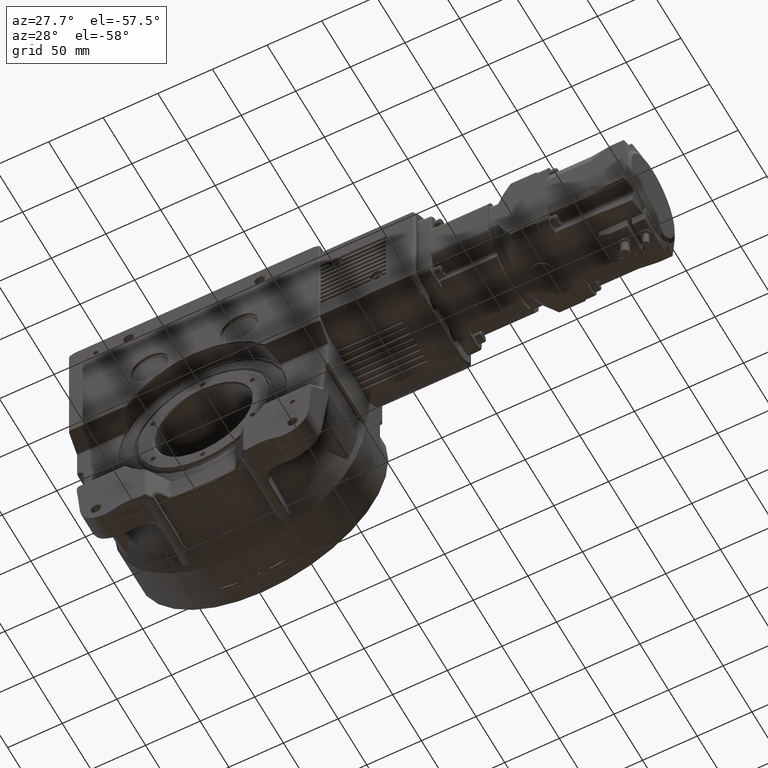
[diagram: clean part render]
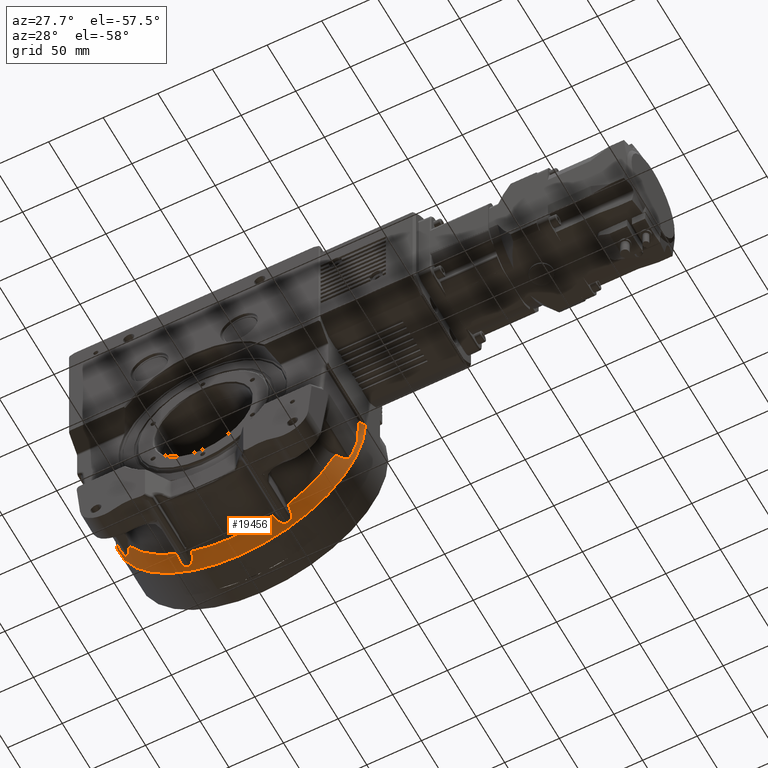
[diagram: same view with one face highlighted and labeled with its STEP entity id]
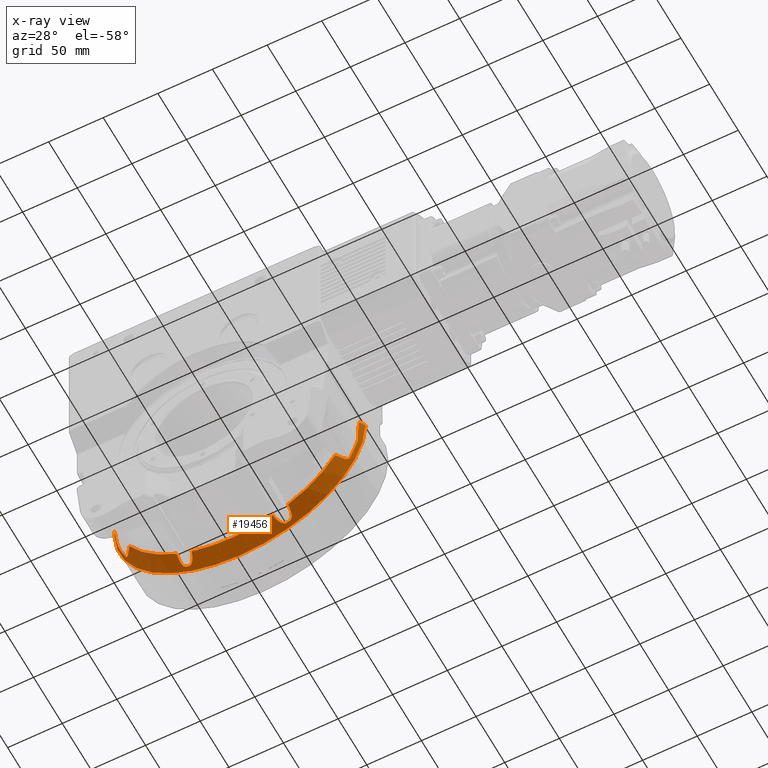
[diagram: x-ray of the same camera — body ghosted, the highlighted face saturated]
A machine part, auxiliary view. The second image highlights one B-rep face of the part: STEP entity #19456.
The next image is the same camera in x-ray: the body ghosted, the highlighted face saturated — about 0% of this face is hidden behind the body in this view.
In plain terms, the highlighted conical surface has half-angle 30 deg.
Its self-contained STEP definition (entity closure, byte-faithful):
#109 = CARTESIAN_POINT ( 'NONE',  ( 48.66629837933911773, 25.23386878858775617, -101.7902821029828999 ) ) ;
#207 = CARTESIAN_POINT ( 'NONE',  ( -38.76322180625985681, 19.83040760406539249, -102.6294529121648935 ) ) ;
#293 = CARTESIAN_POINT ( 'NONE',  ( 43.94173475166527254, 25.22323886724928599, -103.9104372815459811 ) ) ;
#528 = CARTESIAN_POINT ( 'NONE',  ( 50.69488868438047291, 22.07611580603390067, -98.75010083335860145 ) ) ;
#581 = CARTESIAN_POINT ( 'NONE',  ( -48.75841842814229921, 25.18201069366929090, -101.7128048831174567 ) ) ;
#623 = CARTESIAN_POINT ( 'NONE',  ( -39.14171349158119995, 20.55587278657718642, -102.9340031714773573 ) ) ;
#713 = CARTESIAN_POINT ( 'NONE',  ( 40.62124474390734008, 22.74151346957037134, -103.7154895297607879 ) ) ;
#955 = CARTESIAN_POINT ( 'NONE',  ( 50.15276971367310210, 23.67187135586816638, -100.0581765036745026 ) ) ;
#1055 = CARTESIAN_POINT ( 'NONE',  ( -38.13530539907443995, 18.43507766045378204, -102.0048156541862454 ) ) ;
#1252 = CARTESIAN_POINT ( 'NONE',  ( 0.000000000000000000, 29.00000000000000000, 0.000000000000000000 ) ) ;
#1288 = ORIENTED_EDGE ( 'NONE', *, *, #69919, .T. ) ;
#1453 = CARTESIAN_POINT ( 'NONE',  ( -48.13002355337695803, 25.40750675056572305, -102.1555389521830080 ) ) ;
#1596 = ORIENTED_EDGE ( 'NONE', *, *, #22812, .T. ) ;
#1599 = AXIS2_PLACEMENT_3D ( 'NONE', #39622, #26592, #53111 ) ;
#1735 = CARTESIAN_POINT ( 'NONE',  ( 50.89819262675280243, 20.46411456383005145, -97.59700854649109658 ) ) ;
#1779 = B_SPLINE_CURVE_WITH_KNOTS ( 'NONE', 3,
 ( #53347, #65554, #12504, #79480, #20730, #7258, #33359, #293, #47268, #72492, #40309, #66841, #40720, #6385, #59895, #46390, #26821, #67258, #12916, #20290, #33769, #39015, #5957, #86005, #39869, #7695, #26407, #34204, #52930, #19864, #79909, #72926, #66417, #60319, #713, #28102, #75919, #68129, #9392, #15497, #8544, #21144, #75088, #35064, #54627, #74655, #35916, #42416, #47677, #2431, #22430, #15074, #41600, #42005, #62468, #34650, #61609, #9826, #62881, #3267, #2859 ),
 .UNSPECIFIED., .F., .F.,
 ( 4, 1, 1, 2, 2, 1, 1, 1, 1, 2, 2, 2, 1, 1, 1, 1, 2, 2, 2, 1, 1, 1, 1, 2, 2, 1, 1, 1, 1, 2, 2, 1, 1, 1, 1, 2, 2, 1, 1, 1, 2, 2, 4 ),
 ( 0.000000000000000000, 0.03125000000003220341, 0.04687500000004835021, 0.05468750000005684342, 0.06250000000006533662, 0.09375000000009986456, 0.1093750000001160599, 0.1171875000001241507, 0.1210937500001280503, 0.1230468750001292022, 0.1250000000001303402, 0.1875000000001748046, 0.2187500000001972866, 0.2343750000002087774, 0.2421875000002152722, 0.2460937500002176592, 0.2480468750002189637, 0.2500000000002202682, 0.3125000000002286504, 0.3437500000002328138, 0.3593750000002351452, 0.3671875000002370326, 0.3710937500002379763, 0.3730468750002374212, 0.3750000000002368661, 0.4375000000002063905, 0.4687500000001907363, 0.4843750000001832978, 0.4921875000001791900, 0.4960937500001779132, 0.5000000000001766365, 0.5625000000001602052, 0.5937500000001523226, 0.6093750000001481038, 0.6171875000001468825, 0.6210937500001454392, 0.6250000000001439959, 0.6875000000001204592, 0.7187500000001084688, 0.7343750000001024736, 0.7421875000001006972, 0.7500000000000988098, 1.000000000000000000 ),
 .UNSPECIFIED. ) ;
#1872 = CARTESIAN_POINT ( 'NONE',  ( -49.59158070749003855, 24.51466744191842295, -100.8799853177025625 ) ) ;
#1912 = CARTESIAN_POINT ( 'NONE',  ( -44.03910381569563981, 25.24811826995350827, -103.8847214090307602 ) ) ;
#1998 = ORIENTED_EDGE ( 'NONE', *, *, #75021, .F. ) ;
#2193 = CARTESIAN_POINT ( 'NONE',  ( 45.81597352803279932, 25.36602540378444814, -103.1878915612483922 ) ) ;
#2209 = VERTEX_POINT ( 'NONE', #55078 ) ;
#2354 = CARTESIAN_POINT ( 'NONE',  ( -99.79261124514704306, 23.34817751874940228, -50.26507202463927371 ) ) ;
#2431 = CARTESIAN_POINT ( 'NONE',  ( 38.83304882065202435, 19.96873621670604848, -102.6884397670671660 ) ) ;
#2777 = CARTESIAN_POINT ( 'NONE',  ( -44.89767231685524962, 25.36602540378444814, -103.5907496628230007 ) ) ;
#2791 = CARTESIAN_POINT ( 'NONE',  ( -100.7638827832306418, 24.36986744644077518, -49.63832202428451268 ) ) ;
#2828 = CARTESIAN_POINT ( 'NONE',  ( 110.9809092037100413, 23.56570828397758888, -14.01688314667545221 ) ) ;
#2859 = CARTESIAN_POINT ( 'NONE',  ( 37.18842157910700053, 15.47114317029969932, -100.5312229560019830 ) ) ;
#3267 = CARTESIAN_POINT ( 'NONE',  ( 37.43453266047418282, 16.49601782966484720, -101.0710807487430003 ) ) ;
#3309 = CARTESIAN_POINT ( 'NONE',  ( 37.18842157910700053, 15.47114317029969932, -100.5312229560019830 ) ) ;
#3384 = B_SPLINE_CURVE_WITH_KNOTS ( 'NONE', 3,
 ( #16481, #3838, #75214, #30374 ),
 .UNSPECIFIED., .F., .F.,
 ( 4, 4 ),
 ( 0.000000000000000000, 0.001505995272605629900 ),
 .UNSPECIFIED. ) ;
#3625 = CARTESIAN_POINT ( 'NONE',  ( -98.67309716674256492, 21.96361053954290199, -50.70263805858520811 ) ) ;
#3778 = CARTESIAN_POINT ( 'NONE',  ( -111.6203910018553387, 23.46598208290950893, -6.693446201811755536 ) ) ;
#3784 = CARTESIAN_POINT ( 'NONE',  ( 94.19257498827731467, 15.47114317029969932, -51.15920548300699267 ) ) ;
#3838 = CARTESIAN_POINT ( 'NONE',  ( -46.27559876770929748, 25.36602540378439841, -102.9838155064400098 ) ) ;
#4073 = CARTESIAN_POINT ( 'NONE',  ( -97.73060098623642489, 20.66100338132034864, -50.88792202985181490 ) ) ;
#4468 = VERTEX_POINT ( 'NONE', #53154 ) ;
#5107 = CARTESIAN_POINT ( 'NONE',  ( -38.94350711527153663, 20.18665162333093832, -102.7811858402334764 ) ) ;
#5763 = CARTESIAN_POINT ( 'NONE',  ( 50.89819262675280243, 20.46411456383005145, -97.59700854649109658 ) ) ;
#5905 = VERTEX_POINT ( 'NONE', #79618 ) ;
#5957 = CARTESIAN_POINT ( 'NONE',  ( 41.84407709221748206, 24.00408874316632790, -104.0143408519285373 ) ) ;
#6086 = VERTEX_POINT ( 'NONE', #69006 ) ;
#6186 = CARTESIAN_POINT ( 'NONE',  ( 50.76486959451239045, 21.71856452255676118, -98.48199611503514461 ) ) ;
#6385 = CARTESIAN_POINT ( 'NONE',  ( 43.28034195345470891, 24.96426927166790222, -104.0256418341324718 ) ) ;
#6477 = AXIS2_PLACEMENT_3D ( 'NONE', #48971, #9840, #42018 ) ;
#6631 = CARTESIAN_POINT ( 'NONE',  ( 48.99829381509683657, 25.03838846144725494, -101.5053404578269038 ) ) ;
#6689 = CARTESIAN_POINT ( 'NONE',  ( -48.15020355146942421, 25.40299912891743972, -102.1431514375182275 ) ) ;
#6918 = CARTESIAN_POINT ( 'NONE',  ( 110.3231518564636247, 24.44423128482015528, -21.66713789972333970 ) ) ;
#6961 = EDGE_CURVE ( 'NONE', #55306, #58257, #28708, .T. ) ;
#7079 = CARTESIAN_POINT ( 'NONE',  ( 50.20649485834614723, 23.56452205287009605, -99.96189547494378758 ) ) ;
#7222 = FACE_OUTER_BOUND ( 'NONE', #60717, .T. ) ;
#7258 = CARTESIAN_POINT ( 'NONE',  ( 44.14532624667906191, 25.27503565992290291, -103.8565187251822692 ) ) ;
#7502 = CARTESIAN_POINT ( 'NONE',  ( 50.88197416982818311, 20.77505785072037270, -97.80793644193875025 ) ) ;
#7561 = CARTESIAN_POINT ( 'NONE',  ( -50.38522378418985426, 23.14618453937278275, -99.60131115869799601 ) ) ;
#7600 = CARTESIAN_POINT ( 'NONE',  ( -38.71148266366422774, 19.72629388579601084, -102.5847370321163083 ) ) ;
#7695 = CARTESIAN_POINT ( 'NONE',  ( 41.60932006846830689, 23.80047829522319347, -103.9820219650964788 ) ) ;
#7997 = CARTESIAN_POINT ( 'NONE',  ( -48.52421145668785130, 25.29523063304236175, -101.8973319033757008 ) ) ;
#8040 = CARTESIAN_POINT ( 'NONE',  ( -43.40368621063422694, 25.02365894984813011, -104.0114761371228127 ) ) ;
#8068 = CARTESIAN_POINT ( 'NONE',  ( -45.81597352803279932, 25.36602540378444814, -103.1878915612483922 ) ) ;
#8314 = VERTEX_POINT ( 'NONE', #66334 ) ;
#8424 = CARTESIAN_POINT ( 'NONE',  ( -50.65783540739104041, 22.24199248932753292, -98.87673010607903734 ) ) ;
#8544 = CARTESIAN_POINT ( 'NONE',  ( 39.67279357995673905, 21.43488356989650612, -103.2742486498776913 ) ) ;
#8937 = ORIENTED_EDGE ( 'NONE', *, *, #32341, .T. ) ;
#9316 = CARTESIAN_POINT ( 'NONE',  ( -100.4377337670749739, 24.05361488837114692, -49.88630818607472150 ) ) ;
#9392 = CARTESIAN_POINT ( 'NONE',  ( 39.77144120698195451, 21.58680489732959629, -103.3302960387607214 ) ) ;
#9756 = CARTESIAN_POINT ( 'NONE',  ( -101.0995937524998567, 24.67002013426290929, -49.34722357348123722 ) ) ;
#9826 = CARTESIAN_POINT ( 'NONE',  ( 38.16101510540905650, 18.49839494403651941, -102.0342303827893176 ) ) ;
#9840 = DIRECTION ( 'NONE',  ( 0.000000000000000000, 1.000000000000000000, 0.000000000000000000 ) ) ;
#9894 = CARTESIAN_POINT ( 'NONE',  ( -110.3247254981578749, 24.52301682882446698, -21.65872618851876652 ) ) ;
#10173 = CARTESIAN_POINT ( 'NONE',  ( -98.37424451752386290, 21.56393894880995532, -50.77901573038113980 ) ) ;
#10662 = VERTEX_POINT ( 'NONE', #47686 ) ;
#11043 = CARTESIAN_POINT ( 'NONE',  ( -101.2640796919424275, 24.80445054771093538, -49.18662864116930677 ) ) ;
#11204 = CARTESIAN_POINT ( 'NONE',  ( 0.000000000000000000, 25.36602540377874959, 0.000000000000000000 ) ) ;
#11314 = AXIS2_PLACEMENT_3D ( 'NONE', #30198, #52251, #83726 ) ;
#11510 = EDGE_CURVE ( 'NONE', #5905, #11687, #53479, .T. ) ;
#11592 = CARTESIAN_POINT ( 'NONE',  ( -110.6431322624109868, 23.94802380310665768, -17.93374981681786196 ) ) ;
#11639 = B_SPLINE_CURVE_WITH_KNOTS ( 'NONE', 3,
 ( #5763, #7502, #73616, #60558, #6186, #66219, #528, #45329, #32711, #52300, #46195, #52747, #34012, #85805, #60134, #59268, #40544, #79293, #13149, #7079, #955, #40113, #73167, #27488, #26214, #80145, #80590, #71871, #39243, #72728, #79714, #19673, #12301, #46623, #59715, #53581, #72309, #39666, #65777, #6631, #32280, #109, #58830, #20098, #26635, #53159, #20529, #38834, #65363, #66664 ),
 .UNSPECIFIED., .F., .F.,
 ( 4, 2, 1, 1, 1, 2, 2, 1, 1, 1, 2, 2, 1, 1, 1, 2, 2, 1, 1, 1, 1, 2, 2, 1, 1, 1, 1, 2, 2, 1, 1, 1, 2, 2, 4 ),
 ( 0.000000000000000000, 0.1250000000000417166, 0.1875000000000638656, 0.2187500000000768829, 0.2343750000000829059, 0.2421875000000854317, 0.2500000000000879297, 0.3125000000000891509, 0.3437500000000883182, 0.3593750000000878742, 0.3671875000000890399, 0.3750000000000901501, 0.4375000000000951461, 0.4687500000000953126, 0.4843750000000969225, 0.4921875000000977551, 0.5000000000000985878, 0.5625000000001069145, 0.5937500000001115774, 0.6093750000001120215, 0.6171875000001102451, 0.6210937500001088019, 0.6250000000001073586, 0.6875000000000581757, 0.7187500000000333067, 0.7343750000000204281, 0.7421875000000138778, 0.7460937500000133227, 0.7500000000000126565, 0.8125000000000150990, 0.8437500000000160982, 0.8593750000000153211, 0.8671875000000159872, 0.8750000000000165423, 1.000000000000000000 ),
 .UNSPECIFIED. ) ;
#11646 = CARTESIAN_POINT ( 'NONE',  ( -42.05816244243780488, 24.18983273899070596, -104.0438543688387369 ) ) ;
#11687 = VERTEX_POINT ( 'NONE', #56041 ) ;
#12075 = CARTESIAN_POINT ( 'NONE',  ( -41.63845296891059178, 23.82220236960060689, -103.9837318817542098 ) ) ;
#12301 = CARTESIAN_POINT ( 'NONE',  ( 49.52799153417793576, 24.58993883312184536, -100.9597250626058837 ) ) ;
#12504 = CARTESIAN_POINT ( 'NONE',  ( 44.56132372581329548, 25.35246171525849945, -103.7275336837866462 ) ) ;
#12835 = AXIS2_PLACEMENT_3D ( 'NONE', #11204, #70778, #37704 ) ;
#12853 = CARTESIAN_POINT ( 'NONE',  ( 51.15920548300699267, 15.47114317029969932, -94.19257498827731467 ) ) ;
#12916 = CARTESIAN_POINT ( 'NONE',  ( 42.23656760491641649, 24.32432944954352294, -104.0552510877427324 ) ) ;
#13149 = CARTESIAN_POINT ( 'NONE',  ( 50.30879390291237030, 23.34387841818155351, -99.76786775553274822 ) ) ;
#13429 = CARTESIAN_POINT ( 'NONE',  ( 111.0013633468878140, 23.55003228647392888, -13.78070409374474359 ) ) ;
#13488 = CARTESIAN_POINT ( 'NONE',  ( -94.19257498827731467, 15.47114317029969932, -51.15920548300699267 ) ) ;
#13647 = CARTESIAN_POINT ( 'NONE',  ( -49.96091221072690303, 24.01500394270529881, -100.3754769476510802 ) ) ;
#13701 = CARTESIAN_POINT ( 'NONE',  ( -37.31139901264223369, 15.98325524019877975, -100.8009805201737805 ) ) ;
#13873 = CARTESIAN_POINT ( 'NONE',  ( 111.3708233701065353, 23.41288451487382005, -9.535407325083392394 ) ) ;
#13995 = B_SPLINE_CURVE_WITH_KNOTS ( 'NONE', 3,
 ( #47415, #80926, #81351, #1735 ),
 .UNSPECIFIED., .F., .F.,
 ( 4, 4 ),
 ( 5.204170427930419742E-18, 0.006048806402922349452 ),
 .UNSPECIFIED. ) ;
#14086 = CARTESIAN_POINT ( 'NONE',  ( -49.09857047305435884, 24.97282940766093162, -101.4149290742071940 ) ) ;
#14123 = CARTESIAN_POINT ( 'NONE',  ( -39.56986645090258037, 21.27279578496585088, -103.2135136415601551 ) ) ;
#14288 = CARTESIAN_POINT ( 'NONE',  ( 111.2884418910864497, 23.41691367203797114, -10.47797333817591969 ) ) ;
#14499 = CARTESIAN_POINT ( 'NONE',  ( -49.57334769259497875, 24.53540038401127177, -100.9022856925976726 ) ) ;
#14709 = CARTESIAN_POINT ( 'NONE',  ( 111.1652253213693058, 23.45496186206627698, -11.89273416627569269 ) ) ;
#14842 = EDGE_CURVE ( 'NONE', #73896, #36282, #82987, .T. ) ;
#14902 = B_SPLINE_CURVE_WITH_KNOTS ( 'NONE', 3,
 ( #74127, #13701, #41065, #79811, #77789, #64702, #27598, #60661, #57755, #1055, #80243, #67174, #46730, #7600, #207, #38598, #34115, #31195, #5107, #623, #58621, #25125, #14123, #27161, #73267, #18161, #18576, #21054, #45097, #80685, #67604, #47176, #47589, #51644, #26731, #20636, #73706, #40638, #12075, #84294, #32072, #44678, #71218, #71644, #11646, #53260, #38157, #20201, #84734, #40220, #31632, #58201, #22754, #8040, #82802, #41510, #54977, #76281, #1912, #61947, #68444, #81978, #2777 ),
 .UNSPECIFIED., .F., .F.,
 ( 4, 2, 1, 1, 1, 2, 2, 1, 1, 1, 1, 2, 2, 1, 1, 1, 1, 2, 2, 1, 1, 1, 1, 2, 2, 2, 1, 1, 1, 1, 2, 2, 2, 1, 1, 1, 2, 2, 1, 1, 1, 2, 2, 4 ),
 ( 0.000000000000000000, 0.1250000000000040246, 0.1875000000000061617, 0.2187500000000068834, 0.2343750000000075495, 0.2421875000000076328, 0.2500000000000077161, 0.3125000000000116573, 0.3437500000000139333, 0.3593750000000147660, 0.3671875000000146549, 0.3710937500000139333, 0.3750000000000132672, 0.4375000000000019984, 0.4687499999999963363, 0.4843749999999933387, 0.4921874999999921729, 0.4960937499999919509, 0.4999999999999916733, 0.5624999999999916733, 0.5937499999999923395, 0.6093749999999924505, 0.6171874999999931166, 0.6210937499999934497, 0.6249999999999937828, 0.6874999999999905631, 0.7187499999999886757, 0.7343749999999874545, 0.7421874999999863443, 0.7460937499999854561, 0.7480468749999844569, 0.7499999999999833467, 0.8124999999999740208, 0.8437499999999689138, 0.8593749999999655831, 0.8671874999999644729, 0.8710937499999648059, 0.8749999999999650280, 0.9062499999999747979, 0.9218749999999795719, 0.9296874999999816813, 0.9335937499999827915, 0.9374999999999839018, 1.000000000000000000 ),
 .UNSPECIFIED. ) ;
#14938 = CARTESIAN_POINT ( 'NONE',  ( -50.47452882789096407, 22.90008849021220172, -99.39679070639252245 ) ) ;
#15003 = CARTESIAN_POINT ( 'NONE',  ( 102.0766076132037909, 25.31409016130549716, -48.17207954277209581 ) ) ;
#15074 = CARTESIAN_POINT ( 'NONE',  ( 38.69700297120677845, 19.70062887468483837, -102.5743887369401932 ) ) ;
#15422 = CARTESIAN_POINT ( 'NONE',  ( -98.69131537781728980, 21.98762680227063626, -50.69751903367701829 ) ) ;
#15426 = CARTESIAN_POINT ( 'NONE',  ( 99.76504968481390279, 23.32034699796510324, -50.28444448884160067 ) ) ;
#15497 = CARTESIAN_POINT ( 'NONE',  ( 39.70230140334071933, 21.48069650708854539, -103.2912471042031228 ) ) ;
#15546 = VERTEX_POINT ( 'NONE', #3309 ) ;
#15835 = CARTESIAN_POINT ( 'NONE',  ( -98.54531131508024089, 21.79401550721283343, -50.73702397925830354 ) ) ;
#16258 = CARTESIAN_POINT ( 'NONE',  ( -101.2592998013289929, 24.80064768940426134, -49.19144339622312145 ) ) ;
#16481 = CARTESIAN_POINT ( 'NONE',  ( -45.81597352803279932, 25.36602540378444814, -103.1878915612483922 ) ) ;
#17021 = CARTESIAN_POINT ( 'NONE',  ( -95.30881779270600873, 17.09957228234669913, -51.07387635447860674 ) ) ;
#17433 = CARTESIAN_POINT ( 'NONE',  ( -96.42098134394520059, 18.73078630554089941, -50.98860857524759638 ) ) ;
#18114 = CARTESIAN_POINT ( 'NONE',  ( -110.0089649145554063, 25.36602540377869985, -25.39433073748484659 ) ) ;
#18161 = CARTESIAN_POINT ( 'NONE',  ( -39.62296558751293674, 21.35691575780156981, -103.2451618389348624 ) ) ;
#18172 = ORIENTED_EDGE ( 'NONE', *, *, #30064, .T. ) ;
#18576 = CARTESIAN_POINT ( 'NONE',  ( -39.79054533834118246, 21.62017605491432448, -103.3436426213508099 ) ) ;
#18778 = CONICAL_SURFACE ( 'NONE', #75733, 102.5000000000000000, 0.5235987755982987046 ) ;
#19456 = ADVANCED_FACE ( 'NONE', ( #7222 ), #18778, .T. ) ;
#19673 = CARTESIAN_POINT ( 'NONE',  ( 49.63082768596244421, 24.46911829938433058, -100.8313723796966315 ) ) ;
#19864 = CARTESIAN_POINT ( 'NONE',  ( 40.78677708061896112, 22.93897894785351710, -103.7730238957336297 ) ) ;
#20098 = CARTESIAN_POINT ( 'NONE',  ( 48.30037116280919918, 25.36447965272870064, -102.0476366782588116 ) ) ;
#20201 = CARTESIAN_POINT ( 'NONE',  ( -42.84459080818444932, 24.73419276022189450, -104.0623404831628562 ) ) ;
#20290 = CARTESIAN_POINT ( 'NONE',  ( 42.02519842038599762, 24.15625915252976696, -104.0360766900672189 ) ) ;
#20468 = ORIENTED_EDGE ( 'NONE', *, *, #35328, .T. ) ;
#20529 = CARTESIAN_POINT ( 'NONE',  ( 48.19370172698752697, 25.39272548331389245, -102.1160765352241100 ) ) ;
#20590 = CARTESIAN_POINT ( 'NONE',  ( -48.92885927871945029, 25.08301699263001794, -101.5674325111629059 ) ) ;
#20636 = CARTESIAN_POINT ( 'NONE',  ( -41.01269391777258022, 23.19917964639834551, -103.8456022901877134 ) ) ;
#20730 = CARTESIAN_POINT ( 'NONE',  ( 44.21523772100839977, 25.29085996320317520, -103.8367043456453587 ) ) ;
#21054 = CARTESIAN_POINT ( 'NONE',  ( -40.03250942458479500, 21.97727274327104752, -103.4713189722215958 ) ) ;
#21144 = CARTESIAN_POINT ( 'NONE',  ( 39.65314915105988547, 21.40426652003447927, -103.2628578851837347 ) ) ;
#21270 = CARTESIAN_POINT ( 'NONE',  ( 0.000000000000000000, 25.36602540377874959, 0.000000000000000000 ) ) ;
#21445 = CARTESIAN_POINT ( 'NONE',  ( -48.09153753445924906, 25.41562024934201602, -102.1788398331219696 ) ) ;
#21882 = CARTESIAN_POINT ( 'NONE',  ( -49.44318914793701936, 24.67509865503063793, -101.0559677278972117 ) ) ;
#22360 = CARTESIAN_POINT ( 'NONE',  ( -99.94248847979422123, 23.51751746674932164, -50.18462214065177562 ) ) ;
#22430 = CARTESIAN_POINT ( 'NONE',  ( 38.82453495913796360, 19.95201057600588967, -102.6813352687795202 ) ) ;
#22754 = CARTESIAN_POINT ( 'NONE',  ( -43.25083436772808199, 24.95007605831057873, -104.0290402492642272 ) ) ;
#22770 = CARTESIAN_POINT ( 'NONE',  ( -101.1861590316656248, 24.74171080009412549, -49.26405157070153251 ) ) ;
#22812 = EDGE_CURVE ( 'NONE', #44026, #36282, #59874, .T. ) ;
#23548 = CARTESIAN_POINT ( 'NONE',  ( -97.52944564538790928, 20.36452533437320156, -50.90338731129980232 ) ) ;
#23553 = CARTESIAN_POINT ( 'NONE',  ( -112.9566366101859956, 25.52670988874589852, -2.932576822734619615 ) ) ;
#23779 = CARTESIAN_POINT ( 'NONE',  ( -111.3726502504004259, 23.41337627559964574, -9.517249037295373526 ) ) ;
#24003 = ORIENTED_EDGE ( 'NONE', *, *, #14842, .F. ) ;
#24206 = CARTESIAN_POINT ( 'NONE',  ( -111.2906920346746347, 23.41701422413374800, -10.45425049115085336 ) ) ;
#24208 = CARTESIAN_POINT ( 'NONE',  ( -37.18842157910700053, 15.47114317029969932, -100.5312229560019830 ) ) ;
#24393 = CARTESIAN_POINT ( 'NONE',  ( -111.9536589991741948, 23.79007016896419913, -2.931981670756584890 ) ) ;
#25125 = CARTESIAN_POINT ( 'NONE',  ( -39.50735793139216412, 21.17248698766684711, -103.1754489723604991 ) ) ;
#25615 = B_SPLINE_CURVE_WITH_KNOTS ( 'NONE', 3,
 ( #27546, #59315, #40168, #32764 ),
 .UNSPECIFIED., .F., .F.,
 ( 4, 4 ),
 ( 0.000000000000000000, 0.006048806402922379810 ),
 .UNSPECIFIED. ) ;
#25910 = CARTESIAN_POINT ( 'NONE',  ( 97.52944564536440453, 20.36452533433855194, -50.90338731130159999 ) ) ;
#26214 = CARTESIAN_POINT ( 'NONE',  ( 50.02669476617121092, 23.90818211725074249, -100.2738265759305278 ) ) ;
#26313 = AXIS2_PLACEMENT_3D ( 'NONE', #59370, #58937, #58517 ) ;
#26407 = CARTESIAN_POINT ( 'NONE',  ( 41.40713751956725019, 23.60812938319492460, -103.9431489247150324 ) ) ;
#26592 = DIRECTION ( 'NONE',  ( 0.000000000000000000, 1.000000000000000000, 0.000000000000000000 ) ) ;
#26635 = CARTESIAN_POINT ( 'NONE',  ( 48.24662245385626846, 25.37911704012692127, -102.0823934456266073 ) ) ;
#26692 = CARTESIAN_POINT ( 'NONE',  ( -50.86549240730538202, 21.09104928174824778, -98.02228873811696985 ) ) ;
#26731 = CARTESIAN_POINT ( 'NONE',  ( -40.81610405744227421, 22.97820400074631664, -103.7859304846670483 ) ) ;
#26784 = CARTESIAN_POINT ( 'NONE',  ( 0.000000000000000000, 7.349364905388989122, 0.000000000000000000 ) ) ;
#26821 = CARTESIAN_POINT ( 'NONE',  ( 42.78023029102530472, 24.69980728239272594, -104.0674795946408153 ) ) ;
#27034 = B_SPLINE_CURVE_WITH_KNOTS ( 'NONE', 3,
 ( #25910, #58125, #38522, #33299 ),
 .UNSPECIFIED., .F., .F.,
 ( 4, 4 ),
 ( 0.000000000000000000, 0.005928350337356640652 ),
 .UNSPECIFIED. ) ;
#27161 = CARTESIAN_POINT ( 'NONE',  ( -39.59679989136093070, 21.31555932946191945, -103.2296266996212779 ) ) ;
#27328 = CARTESIAN_POINT ( 'NONE',  ( 111.0320509244576925, 23.52751842941476923, -13.42648962760561560 ) ) ;
#27488 = CARTESIAN_POINT ( 'NONE',  ( 50.10615583856435507, 23.76087109080853566, -100.1389833131654541 ) ) ;
#27546 = CARTESIAN_POINT ( 'NONE',  ( -50.89819262675280243, 20.46411456383005145, -97.59700854649109658 ) ) ;
#27551 = CARTESIAN_POINT ( 'NONE',  ( -50.41671942156360586, 23.06133614562405754, -99.53045737797128822 ) ) ;
#27598 = CARTESIAN_POINT ( 'NONE',  ( -38.06277429594699413, 18.25351410074828706, -101.9200139465441168 ) ) ;
#27836 = CIRCLE ( 'NONE', #63968, 107.1891108675445992 ) ;
#27935 = ORIENTED_EDGE ( 'NONE', *, *, #83438, .T. ) ;
#27973 = CARTESIAN_POINT ( 'NONE',  ( -50.60487744820587608, 22.45808880056807411, -99.04398442300507099 ) ) ;
#28070 = CARTESIAN_POINT ( 'NONE',  ( -111.9536589991741948, 23.79007016896419913, -2.931981670756584890 ) ) ;
#28102 = CARTESIAN_POINT ( 'NONE',  ( 40.44519702728758404, 22.52733223015208708, -103.6516309027393845 ) ) ;
#28399 = CARTESIAN_POINT ( 'NONE',  ( -50.33970553893988864, 23.26321332303820100, -99.70003684251022946 ) ) ;
#28572 = EDGE_CURVE ( 'NONE', #10662, #50426, #71359, .T. ) ;
#28708 = CIRCLE ( 'NONE', #6477, 107.1891108675445992 ) ;
#28791 = ORIENTED_EDGE ( 'NONE', *, *, #83126, .T. ) ;
#28893 = CARTESIAN_POINT ( 'NONE',  ( -99.88024420151553784, 23.44761215635967133, -50.21861606728822380 ) ) ;
#29115 = CARTESIAN_POINT ( 'NONE',  ( -44.89767231685524962, 25.36602540378444814, -103.5907496628230007 ) ) ;
#29308 = CARTESIAN_POINT ( 'NONE',  ( -100.9224812528854471, 24.51715434247473624, -49.50858359604756487 ) ) ;
#29868 = CARTESIAN_POINT ( 'NONE',  ( -111.0455697993833581, 23.51226529975122403, -13.26977777602125030 ) ) ;
#30064 = EDGE_CURVE ( 'NONE', #2209, #65464, #25615, .T. ) ;
#30150 = CARTESIAN_POINT ( 'NONE',  ( -98.70345732784876702, 22.00361749180019899, -50.69408665183410534 ) ) ;
#30198 = CARTESIAN_POINT ( 'NONE',  ( 0.000000000000000000, 25.36602540378444814, 0.000000000000000000 ) ) ;
#30374 = CARTESIAN_POINT ( 'NONE',  ( -47.20504085659869986, 25.44779747972464889, -102.6118472526939911 ) ) ;
#30907 = CARTESIAN_POINT ( 'NONE',  ( -113.9596079171967915, 27.26335325475854887, -2.933156363660434973 ) ) ;
#31195 = CARTESIAN_POINT ( 'NONE',  ( -38.80743311503364623, 19.91829155530971462, -102.6669882179147208 ) ) ;
#31343 = ORIENTED_EDGE ( 'NONE', *, *, #84746, .T. ) ;
#31632 = CARTESIAN_POINT ( 'NONE',  ( -43.20737781167356673, 24.92870282347170630, -104.0337350518378514 ) ) ;
#32072 = CARTESIAN_POINT ( 'NONE',  ( -41.77181579181080906, 23.94129241128479890, -104.0043132430937192 ) ) ;
#32280 = CARTESIAN_POINT ( 'NONE',  ( 48.86350474782385334, 25.12706354924629082, -101.6272370428555405 ) ) ;
#32341 = EDGE_CURVE ( 'NONE', #58347, #42674, #3384, .T. ) ;
#32711 = CARTESIAN_POINT ( 'NONE',  ( 50.67662706239685377, 22.15959734100556844, -98.81364113943310201 ) ) ;
#32764 = CARTESIAN_POINT ( 'NONE',  ( -51.15920548300699267, 15.47114317029969932, -94.19257498827731467 ) ) ;
#32948 = CARTESIAN_POINT ( 'NONE',  ( -110.0089649145554063, 25.36602540377869985, -25.39433073748484659 ) ) ;
#33223 = CARTESIAN_POINT ( 'NONE',  ( -50.78840303051297411, 21.67145809031552872, -98.43965960091394152 ) ) ;
#33246 = AXIS2_PLACEMENT_3D ( 'NONE', #1252, #69055, #76012 ) ;
#33299 = CARTESIAN_POINT ( 'NONE',  ( 94.19257498827731467, 15.47114317029969932, -51.15920548300699267 ) ) ;
#33359 = CARTESIAN_POINT ( 'NONE',  ( 44.10841825635914404, 25.26608515265879262, -103.8665842576437512 ) ) ;
#33645 = CARTESIAN_POINT ( 'NONE',  ( -48.03362855147846489, 25.42714018753887828, -102.2134388465550501 ) ) ;
#33769 = CARTESIAN_POINT ( 'NONE',  ( 41.91953754436505619, 24.06840746059690872, -104.0239949963201553 ) ) ;
#33845 = CARTESIAN_POINT ( 'NONE',  ( 111.9536589991741948, 23.79007016896419913, -2.931981670756584890 ) ) ;
#33956 = ORIENTED_EDGE ( 'NONE', *, *, #76184, .T. ) ;
#34012 = CARTESIAN_POINT ( 'NONE',  ( 50.51169682443685360, 22.78285185274272706, -99.30195050591767369 ) ) ;
#34115 = CARTESIAN_POINT ( 'NONE',  ( -38.80046763100504847, 19.90450504670764076, -102.6611117116071625 ) ) ;
#34204 = CARTESIAN_POINT ( 'NONE',  ( 41.10759735481747867, 23.29738231384540015, -103.8689490990958433 ) ) ;
#34510 = CARTESIAN_POINT ( 'NONE',  ( -49.60370162447544828, 24.50077157135813621, -100.8650855130567692 ) ) ;
#34539 = EDGE_CURVE ( 'NONE', #15546, #74001, #27836, .T. ) ;
#34611 = DIRECTION ( 'NONE',  ( 0.000000000000000000, 0.000000000000000000, 1.000000000000000000 ) ) ;
#34650 = CARTESIAN_POINT ( 'NONE',  ( 38.20040304295165612, 18.59423994598282093, -102.0785766612808771 ) ) ;
#34938 = CARTESIAN_POINT ( 'NONE',  ( -50.02542930526745124, 23.90612260140239087, -100.2730686097914514 ) ) ;
#35064 = CARTESIAN_POINT ( 'NONE',  ( 39.48935428467420650, 21.14706994529956674, -103.1666755494116074 ) ) ;
#35328 = EDGE_CURVE ( 'NONE', #50426, #6086, #73778, .T. ) ;
#35404 = CARTESIAN_POINT ( 'NONE',  ( -99.61564355868397058, 23.14385710243412930, -50.35403414360055052 ) ) ;
#35612 = DIRECTION ( 'NONE',  ( 0.000000000000000000, 1.000000000000000000, 0.000000000000000000 ) ) ;
#35916 = CARTESIAN_POINT ( 'NONE',  ( 38.92991493815881654, 20.15657665607881555, -102.7677384121336246 ) ) ;
#35995 = CARTESIAN_POINT ( 'NONE',  ( 1.408343819019455781E-14, 29.00000000000000000, -115.0000000000000000 ) ) ;
#36048 = ORIENTED_EDGE ( 'NONE', *, *, #28572, .T. ) ;
#36260 = CARTESIAN_POINT ( 'NONE',  ( -97.93005487127781805, 20.94716345633752397, -50.86250783858318414 ) ) ;
#36282 = VERTEX_POINT ( 'NONE', #41994 ) ;
#37296 = EDGE_CURVE ( 'NONE', #6086, #15546, #1779, .T. ) ;
#37688 = CARTESIAN_POINT ( 'NONE',  ( -111.1270756925278107, 23.46644257073069895, -12.33138254149193003 ) ) ;
#37704 = DIRECTION ( 'NONE',  ( 0.000000000000000000, 0.000000000000000000, -1.000000000000000000 ) ) ;
#37856 = DIRECTION ( 'NONE',  ( 0.000000000000000000, 1.000000000000000000, 0.000000000000000000 ) ) ;
#38115 = VERTEX_POINT ( 'NONE', #48190 ) ;
#38157 = CARTESIAN_POINT ( 'NONE',  ( -42.66310721779318982, 24.62067874613839535, -104.0659982728457891 ) ) ;
#38522 = CARTESIAN_POINT ( 'NONE',  ( 95.30881779269810750, 17.09957228233519899, -51.07387635447920360 ) ) ;
#38598 = CARTESIAN_POINT ( 'NONE',  ( -38.78554887258826511, 19.87488509310806606, -102.6484680474597013 ) ) ;
#38834 = CARTESIAN_POINT ( 'NONE',  ( 47.86674193667484900, 25.47037532111394498, -102.3198740635703103 ) ) ;
#39015 = CARTESIAN_POINT ( 'NONE',  ( 41.86671409985376613, 24.02352747877396766, -104.0173306178423758 ) ) ;
#39243 = CARTESIAN_POINT ( 'NONE',  ( 49.66255950393755825, 24.43118250190589436, -100.7913329655058163 ) ) ;
#39278 = DIRECTION ( 'NONE',  ( 0.000000000000000000, 1.000000000000000000, 0.000000000000000000 ) ) ;
#39622 = CARTESIAN_POINT ( 'NONE',  ( 0.000000000000000000, 25.36602540378444814, 0.000000000000000000 ) ) ;
#39666 = CARTESIAN_POINT ( 'NONE',  ( 49.01893626482289790, 25.02456438549557305, -101.4865098100070213 ) ) ;
#39728 = CARTESIAN_POINT ( 'NONE',  ( -50.07044668937735565, 23.82643967796159501, -100.1991642137952994 ) ) ;
#39777 = ORIENTED_EDGE ( 'NONE', *, *, #11510, .T. ) ;
#39869 = CARTESIAN_POINT ( 'NONE',  ( 41.82028870763138428, 23.98355931610370106, -104.0111327324622152 ) ) ;
#40113 = CARTESIAN_POINT ( 'NONE',  ( 50.12919254631324151, 23.71724123265029860, -100.0992819022520166 ) ) ;
#40133 = ORIENTED_EDGE ( 'NONE', *, *, #6961, .T. ) ;
#40168 = CARTESIAN_POINT ( 'NONE',  ( -51.07214257178980432, 17.13265995420075072, -95.33149847026770374 ) ) ;
#40220 = CARTESIAN_POINT ( 'NONE',  ( -43.16204311213136435, 24.90606278434798426, -104.0384066802322565 ) ) ;
#40235 = CARTESIAN_POINT ( 'NONE',  ( 99.54983917772570123, 23.06801484179390371, -50.38727089469670517 ) ) ;
#40249 = CARTESIAN_POINT ( 'NONE',  ( 46.27559876770929748, 25.36602540378439841, -102.9838155064400098 ) ) ;
#40309 = CARTESIAN_POINT ( 'NONE',  ( 43.38305711054317726, 25.01221903130454294, -104.0128521785353115 ) ) ;
#40544 = CARTESIAN_POINT ( 'NONE',  ( 50.44239560804918199, 22.98998214119232486, -99.47125877343142974 ) ) ;
#40597 = CARTESIAN_POINT ( 'NONE',  ( -50.05251503226203624, 23.85844770875879206, -100.2287792436715108 ) ) ;
#40638 = CARTESIAN_POINT ( 'NONE',  ( -41.46156190198972524, 23.65778846656665024, -103.9522477975987300 ) ) ;
#40720 = CARTESIAN_POINT ( 'NONE',  ( 43.29747980865607815, 24.97242207210292975, -104.0236083921931680 ) ) ;
#41023 = CARTESIAN_POINT ( 'NONE',  ( -50.66246694537475292, 22.22202483013240837, -98.86140321587308222 ) ) ;
#41065 = CARTESIAN_POINT ( 'NONE',  ( -37.45257734645446845, 16.48893795856582756, -101.0600468839962360 ) ) ;
#41330 = CARTESIAN_POINT ( 'NONE',  ( 0.000000000000000000, 15.47114317029969932, 0.000000000000000000 ) ) ;
#41460 = CARTESIAN_POINT ( 'NONE',  ( -50.63622922770590407, 22.33280423434521822, -98.94670040017382462 ) ) ;
#41510 = CARTESIAN_POINT ( 'NONE',  ( -43.84000069671905209, 25.19024561443936960, -103.9326747878185699 ) ) ;
#41529 = CARTESIAN_POINT ( 'NONE',  ( 101.6922786364090001, 25.11946462460399943, -48.71868199300590163 ) ) ;
#41600 = CARTESIAN_POINT ( 'NONE',  ( 38.52346730101673700, 19.33952854193878323, -102.4169841601118094 ) ) ;
#41664 = CARTESIAN_POINT ( 'NONE',  ( -47.20504085659869986, 25.44779747972464889, -102.6118472526939911 ) ) ;
#41730 = ORIENTED_EDGE ( 'NONE', *, *, #66223, .T. ) ;
#41797 = ORIENTED_EDGE ( 'NONE', *, *, #50007, .T. ) ;
#41931 = CARTESIAN_POINT ( 'NONE',  ( -99.14807028808576206, 22.57796755520525167, -50.55345539132739674 ) ) ;
#41994 = CARTESIAN_POINT ( 'NONE',  ( -114.9625733810223949, 29.00000000000000000, -2.933721461394899865 ) ) ;
#42005 = CARTESIAN_POINT ( 'NONE',  ( 38.33231653930132410, 18.90737991194815137, -102.2222287631256989 ) ) ;
#42018 = DIRECTION ( 'NONE',  ( 0.000000000000000000, 0.000000000000000000, 1.000000000000000000 ) ) ;
#42253 = CARTESIAN_POINT ( 'NONE',  ( -114.9625733810223949, 29.00000000000000000, -2.933721461394899865 ) ) ;
#42340 = CARTESIAN_POINT ( 'NONE',  ( -99.95490577033284296, 23.53139794229513981, -50.17775047539569755 ) ) ;
#42416 = CARTESIAN_POINT ( 'NONE',  ( 38.87325350175036220, 20.04725328180192534, -102.7216983313864063 ) ) ;
#42674 = VERTEX_POINT ( 'NONE', #41664 ) ;
#43276 = CARTESIAN_POINT ( 'NONE',  ( 111.9536589991741948, 23.79007016896419913, -2.931981670756584890 ) ) ;
#43400 = ORIENTED_EDGE ( 'NONE', *, *, #37296, .T. ) ;
#43942 = DIRECTION ( 'NONE',  ( 0.000000000000000000, 0.000000000000000000, 1.000000000000000000 ) ) ;
#44026 = VERTEX_POINT ( 'NONE', #28070 ) ;
#44358 = EDGE_CURVE ( 'NONE', #42674, #2209, #55888, .T. ) ;
#44628 = CARTESIAN_POINT ( 'NONE',  ( -110.9240018165709216, 23.61370316017075055, -14.67452518665915839 ) ) ;
#44678 = CARTESIAN_POINT ( 'NONE',  ( -41.79091695648769900, 23.95800381826889236, -104.0070367493520251 ) ) ;
#45097 = CARTESIAN_POINT ( 'NONE',  ( -40.32418202120987871, 22.36839695811134732, -103.6002560777250920 ) ) ;
#45156 = CARTESIAN_POINT ( 'NONE',  ( 114.9625733810223949, 29.00000000000000000, -2.933721461394899865 ) ) ;
#45250 = B_SPLINE_CURVE_WITH_KNOTS ( 'NONE', 3,
 ( #18114, #71166, #9894, #55995, #11592, #70319, #83399, #57283, #44628, #83819, #29868, #37688, #24206, #23779, #3778, #75994, #50742 ),
 .UNSPECIFIED., .F., .F.,
 ( 4, 2, 2, 1, 2, 2, 2, 2, 4 ),
 ( 0.000000000000000000, 0.2499999999999996114, 0.3749999999999995559, 0.4374999999999995559, 0.4687499999999996114, 0.4999999999999996669, 0.6249999999999997780, 0.7499999999999998890, 1.000000000000000000 ),
 .UNSPECIFIED. ) ;
#45329 = CARTESIAN_POINT ( 'NONE',  ( 50.68398362821825742, 22.12625823154660054, -98.78823460279603808 ) ) ;
#45443 = AXIS2_PLACEMENT_3D ( 'NONE', #50068, #37856, #43942 ) ;
#45708 = CIRCLE ( 'NONE', #33246, 115.0000000000000000 ) ;
#45803 = B_SPLINE_CURVE_WITH_KNOTS ( 'NONE', 3,
 ( #63665, #4073, #36260, #63226, #10173, #15835, #75016, #3625, #15422, #30150, #69327, #56720, #41931, #68458, #35404, #2354, #28893, #55431, #22360, #42340, #68882, #62396, #9316, #2791, #29308, #9756, #22770, #49303, #75846, #16258, #11043, #83677, #65791, #71448 ),
 .UNSPECIFIED., .F., .F.,
 ( 4, 2, 1, 1, 1, 1, 2, 2, 2, 1, 1, 1, 1, 2, 2, 2, 1, 1, 1, 1, 2, 2, 4 ),
 ( 0.000000000000000000, 0.1249999999999851230, 0.1874999999999763522, 0.2187499999999718003, 0.2343749999999700517, 0.2421874999999678313, 0.2460937499999674427, 0.2499999999999670541, 0.3749999999999913403, 0.4375000000000018874, 0.4687500000000054956, 0.4843750000000073275, 0.4921875000000082712, 0.4960937500000074385, 0.5000000000000066613, 0.6250000000000324185, 0.6875000000000457412, 0.7187500000000528466, 0.7343750000000551781, 0.7421875000000545120, 0.7460937500000534017, 0.7500000000000522915, 1.000000000000000000 ),
 .UNSPECIFIED. ) ;
#46195 = CARTESIAN_POINT ( 'NONE',  ( 50.63603597132669165, 22.33859654275286744, -98.95058484631009321 ) ) ;
#46390 = CARTESIAN_POINT ( 'NONE',  ( 43.02183861177495316, 24.83954645485197332, -104.0551619003266950 ) ) ;
#46623 = CARTESIAN_POINT ( 'NONE',  ( 49.37606031870744516, 24.74614632244485790, -101.1345705770766301 ) ) ;
#46730 = CARTESIAN_POINT ( 'NONE',  ( -38.60943250800381321, 19.51673480724469201, -102.4939182743604391 ) ) ;
#46748 = CARTESIAN_POINT ( 'NONE',  ( 102.2478492101586056, 25.36602540378439841, -47.87842812944720094 ) ) ;
#46908 = CARTESIAN_POINT ( 'NONE',  ( 111.6189033945280045, 23.46480595194548613, -6.707645274823904380 ) ) ;
#47128 = CARTESIAN_POINT ( 'NONE',  ( -49.70249866505955083, 24.38570499803816816, -100.7424426696048414 ) ) ;
#47176 = CARTESIAN_POINT ( 'NONE',  ( -40.57915201758974177, 22.69010547261350297, -103.7000947170286480 ) ) ;
#47194 = CARTESIAN_POINT ( 'NONE',  ( 102.3950824733742024, 25.36602540377869985, -47.56144952004219562 ) ) ;
#47233 = CARTESIAN_POINT ( 'NONE',  ( 50.89819262675280243, 20.46411456383005145, -97.59700854649109658 ) ) ;
#47268 = CARTESIAN_POINT ( 'NONE',  ( 43.74018970402831030, 25.15984446986007939, -103.9557917414614536 ) ) ;
#47415 = CARTESIAN_POINT ( 'NONE',  ( 51.15920548300699267, 15.47114317029969932, -94.19257498827731467 ) ) ;
#47551 = CARTESIAN_POINT ( 'NONE',  ( -48.31333632684486190, 25.36469344505790957, -102.0417612894208759 ) ) ;
#47589 = CARTESIAN_POINT ( 'NONE',  ( -40.60059728506354304, 22.71637402087193536, -103.7079874792694199 ) ) ;
#47677 = CARTESIAN_POINT ( 'NONE',  ( 38.84911179738673326, 20.00017332090527589, -102.7017694948056601 ) ) ;
#47686 = CARTESIAN_POINT ( 'NONE',  ( 47.20504085659869986, 25.44779747972464889, -102.6118472526939911 ) ) ;
#47976 = CARTESIAN_POINT ( 'NONE',  ( -49.61035040716951272, 24.49308107698854897, -100.8568672441598011 ) ) ;
#48031 = ORIENTED_EDGE ( 'NONE', *, *, #60604, .T. ) ;
#48190 = CARTESIAN_POINT ( 'NONE',  ( -97.52944564538790928, 20.36452533437320156, -50.90338731129980232 ) ) ;
#48971 = CARTESIAN_POINT ( 'NONE',  ( 0.000000000000000000, 15.47114317029969932, 0.000000000000000000 ) ) ;
#49303 = CARTESIAN_POINT ( 'NONE',  ( -101.2289425151883648, 24.77637057549403465, -49.22184354507086113 ) ) ;
#49571 = ORIENTED_EDGE ( 'NONE', *, *, #85607, .T. ) ;
#49746 = VERTEX_POINT ( 'NONE', #65200 ) ;
#49829 = CARTESIAN_POINT ( 'NONE',  ( 113.9596079171967915, 27.26335325475854887, -2.933156363660434973 ) ) ;
#50007 = EDGE_CURVE ( 'NONE', #84070, #44026, #45250, .T. ) ;
#50068 = CARTESIAN_POINT ( 'NONE',  ( 0.000000000000000000, 29.00000000000000000, 0.000000000000000000 ) ) ;
#50160 = ORIENTED_EDGE ( 'NONE', *, *, #66872, .T. ) ;
#50426 = VERTEX_POINT ( 'NONE', #2193 ) ;
#50742 = CARTESIAN_POINT ( 'NONE',  ( -111.9536589991741948, 23.79007016896419913, -2.931981670756584890 ) ) ;
#51251 = CIRCLE ( 'NONE', #26313, 107.1891108675445992 ) ;
#51644 = CARTESIAN_POINT ( 'NONE',  ( -40.60995789569499692, 22.72779907954272716, -103.7114064626033638 ) ) ;
#52251 = DIRECTION ( 'NONE',  ( 0.000000000000000000, 1.000000000000000000, 0.000000000000000000 ) ) ;
#52300 = CARTESIAN_POINT ( 'NONE',  ( 50.67327877672794756, 22.17457845743871303, -98.82507854812561732 ) ) ;
#52747 = CARTESIAN_POINT ( 'NONE',  ( 50.58210001896676289, 22.54973633229913688, -99.11507414549477346 ) ) ;
#52788 = B_SPLINE_CURVE_WITH_KNOTS ( 'NONE', 3,
 ( #33845, #80846, #46908, #13873, #14288, #14709, #53005, #27328, #13429, #2828, #82431, #73450, #6918, #66920 ),
 .UNSPECIFIED., .F., .F.,
 ( 4, 2, 2, 1, 1, 2, 2, 4 ),
 ( 0.000000000000000000, 0.2500000000000005551, 0.3750000000000006661, 0.4375000000000007216, 0.4687500000000007772, 0.4843750000000007216, 0.5000000000000006661, 1.000000000000000000 ),
 .UNSPECIFIED. ) ;
#52930 = CARTESIAN_POINT ( 'NONE',  ( 40.95876028612919129, 23.13645285384385630, -103.8278766537967073 ) ) ;
#53005 = CARTESIAN_POINT ( 'NONE',  ( 111.1037050162834419, 23.48198707065091639, -12.60034245160770894 ) ) ;
#53012 = CIRCLE ( 'NONE', #1599, 112.9019237886466129 ) ;
#53111 = DIRECTION ( 'NONE',  ( 0.000000000000000000, 0.000000000000000000, 1.000000000000000000 ) ) ;
#53154 = CARTESIAN_POINT ( 'NONE',  ( 97.52944564536440453, 20.36452533433855194, -50.90338731130159999 ) ) ;
#53159 = CARTESIAN_POINT ( 'NONE',  ( 48.21065030617228331, 25.38849231672773854, -102.1053728909941327 ) ) ;
#53217 = CARTESIAN_POINT ( 'NONE',  ( -49.26292024805847802, 24.84687682004133080, -101.2544043702391861 ) ) ;
#53260 = CARTESIAN_POINT ( 'NONE',  ( -42.30013973623071166, 24.37616206457046886, -104.0618684723147283 ) ) ;
#53347 = CARTESIAN_POINT ( 'NONE',  ( 44.89767231685524962, 25.36602540378444814, -103.5907496628230007 ) ) ;
#53479 = CIRCLE ( 'NONE', #64411, 112.9019237886434013 ) ;
#53581 = CARTESIAN_POINT ( 'NONE',  ( 49.08969908596988319, 24.97552373365271094, -101.4208566170440236 ) ) ;
#53638 = CARTESIAN_POINT ( 'NONE',  ( -47.61951171185589970, 25.47591456650774333, -102.4383367261462041 ) ) ;
#54499 = CARTESIAN_POINT ( 'NONE',  ( -50.89819262675280243, 20.46411456383005145, -97.59700854649109658 ) ) ;
#54627 = CARTESIAN_POINT ( 'NONE',  ( 39.27915887585916721, 20.79768060291230114, -103.0310531810988977 ) ) ;
#54977 = CARTESIAN_POINT ( 'NONE',  ( -43.95629248687109936, 25.22521750698415133, -103.9054402376764727 ) ) ;
#55078 = CARTESIAN_POINT ( 'NONE',  ( -50.89819262675280243, 20.46411456383005145, -97.59700854649109658 ) ) ;
#55306 = VERTEX_POINT ( 'NONE', #3784 ) ;
#55431 = CARTESIAN_POINT ( 'NONE',  ( -99.92384726193641598, 23.49664808252795822, -50.19489437434352652 ) ) ;
#55888 = B_SPLINE_CURVE_WITH_KNOTS ( 'NONE', 3,
 ( #66270, #60615, #53638, #73225, #33645, #21445, #1453, #6689, #47551, #7997, #581, #80204, #20590, #61479, #81498, #74086, #14086, #53217, #21882, #67136, #14499, #1872, #34510, #47976, #47128, #66718, #13647, #34938, #40597, #39728, #59772, #74960, #73667, #28399, #7561, #74520, #27551, #61062, #14938, #80644, #27973, #41460, #68005, #8424, #41023, #33223, #26692, #54499 ),
 .UNSPECIFIED., .F., .F.,
 ( 4, 1, 1, 1, 2, 2, 1, 1, 1, 1, 2, 2, 1, 1, 1, 1, 2, 2, 1, 1, 1, 2, 2, 1, 1, 1, 2, 2, 1, 1, 1, 2, 2, 4 ),
 ( 0.000000000000000000, 0.06249999999995375921, 0.09374999999993059718, 0.1093749999999200501, 0.1171874999999156924, 0.1249999999999113487, 0.1874999999998837319, 0.2187499999998697431, 0.2343749999998635536, 0.2421874999998604727, 0.2460937499998597233, 0.2499999999998589462, 0.3124999999998273603, 0.3437499999998115396, 0.3593749999998057665, 0.3671874999998039901, 0.3710937499998040456, 0.3749999999998041011, 0.4374999999998255840, 0.4687499999998362976, 0.4843749999998435696, 0.4921874999998457900, 0.4999999999998480105, 0.5624999999998776534, 0.5937499999998910871, 0.6093749999998976374, 0.6171874999998991917, 0.6249999999999007461, 0.6874999999999060751, 0.7187499999999085176, 0.7343749999999095168, 0.7421874999999114042, 0.7499999999999132916, 1.000000000000000000 ),
 .UNSPECIFIED. ) ;
#55995 = CARTESIAN_POINT ( 'NONE',  ( -110.5633423361611420, 24.07630962400323682, -18.86464932139056572 ) ) ;
#56041 = CARTESIAN_POINT ( 'NONE',  ( 102.3950824733742024, 25.36602540377869985, -47.56144952004219562 ) ) ;
#56487 = B_SPLINE_CURVE_WITH_KNOTS ( 'NONE', 3,
 ( #63129, #17021, #17433, #23548 ),
 .UNSPECIFIED., .F., .F.,
 ( 4, 4 ),
 ( 5.204170427930419742E-18, 0.005928350337398609685 ),
 .UNSPECIFIED. ) ;
#56720 = CARTESIAN_POINT ( 'NONE',  ( -98.93432218652445442, 22.30707925476661302, -50.62804679173206068 ) ) ;
#56805 = CARTESIAN_POINT ( 'NONE',  ( 114.9625733810223949, 29.00000000000000000, -2.933721461394899865 ) ) ;
#57283 = CARTESIAN_POINT ( 'NONE',  ( -110.8837456831118686, 23.65207534473091755, -15.14030967911982728 ) ) ;
#57460 = CARTESIAN_POINT ( 'NONE',  ( 98.31157848626649809, 21.48873239835500115, -50.80648171734269880 ) ) ;
#57755 = CARTESIAN_POINT ( 'NONE',  ( -38.12351922349241562, 18.40583892368422880, -101.9911996410636874 ) ) ;
#58125 = CARTESIAN_POINT ( 'NONE',  ( 96.42098134392949760, 18.73078630551779966, -50.98860857524879719 ) ) ;
#58201 = CARTESIAN_POINT ( 'NONE',  ( -43.23759919860708578, 24.94361400941458129, -104.0305013383052568 ) ) ;
#58257 = VERTEX_POINT ( 'NONE', #12853 ) ;
#58347 = VERTEX_POINT ( 'NONE', #8068 ) ;
#58517 = DIRECTION ( 'NONE',  ( 0.000000000000000000, 0.000000000000000000, 1.000000000000000000 ) ) ;
#58621 = CARTESIAN_POINT ( 'NONE',  ( -39.38368521293827484, 20.96976061916945966, -103.0974517206686443 ) ) ;
#58713 = CIRCLE ( 'NONE', #12835, 112.9019237886434013 ) ;
#58830 = CARTESIAN_POINT ( 'NONE',  ( 48.42431503995323538, 25.32630444132044900, -101.9645267073094033 ) ) ;
#58937 = DIRECTION ( 'NONE',  ( 0.000000000000000000, 1.000000000000000000, 0.000000000000000000 ) ) ;
#59268 = CARTESIAN_POINT ( 'NONE',  ( 50.44739345945465203, 22.97566475819193954, -99.45945548767379307 ) ) ;
#59315 = CARTESIAN_POINT ( 'NONE',  ( -50.98514352754899903, 18.79707564530270147, -96.46617528673280617 ) ) ;
#59370 = CARTESIAN_POINT ( 'NONE',  ( 0.000000000000000000, 15.47114317029969932, 0.000000000000000000 ) ) ;
#59715 = CARTESIAN_POINT ( 'NONE',  ( 49.18709563183431044, 24.90325371040318814, -101.3273122340238785 ) ) ;
#59772 = CARTESIAN_POINT ( 'NONE',  ( -50.08012979569527090, 23.80889133005378255, -100.1829979351309277 ) ) ;
#59874 = B_SPLINE_CURVE_WITH_KNOTS ( 'NONE', 3,
 ( #24393, #23553, #30907, #42253 ),
 .UNSPECIFIED., .F., .F.,
 ( 4, 4 ),
 ( 0.000000000000000000, 0.006016389085529700101 ),
 .UNSPECIFIED. ) ;
#59895 = CARTESIAN_POINT ( 'NONE',  ( 43.27073563103816412, 24.95966277491577401, -104.0267575307026533 ) ) ;
#60134 = CARTESIAN_POINT ( 'NONE',  ( 50.45834034572479254, 22.94393566408418295, -99.43336022074635139 ) ) ;
#60247 = CARTESIAN_POINT ( 'NONE',  ( 101.0641512451521891, 24.64649386648314788, -49.38959414729949771 ) ) ;
#60319 = CARTESIAN_POINT ( 'NONE',  ( 40.62807724170069434, 22.74980843009154796, -103.7179567108967291 ) ) ;
#60558 = CARTESIAN_POINT ( 'NONE',  ( 50.79760890081791302, 21.50675886926896752, -98.32747129602145719 ) ) ;
#60604 = EDGE_CURVE ( 'NONE', #8314, #5905, #52788, .T. ) ;
#60615 = CARTESIAN_POINT ( 'NONE',  ( -47.37301518720357052, 25.46736828202232772, -102.5470106909210557 ) ) ;
#60661 = CARTESIAN_POINT ( 'NONE',  ( -38.09913221776874082, 18.34493913209516691, -101.9627779468764146 ) ) ;
#60717 = EDGE_LOOP ( 'NONE', ( #78979, #78830, #33956, #50160, #41797, #1596, #24003, #1998, #1288, #48031, #39777, #31343, #49571, #40133, #79911, #27935, #36048, #20468, #43400, #63983, #28791, #41730, #8937, #80370, #18172 ) ) ;
#61062 = CARTESIAN_POINT ( 'NONE',  ( -50.42338356177949521, 23.04296111856409368, -99.51518849840765313 ) ) ;
#61479 = CARTESIAN_POINT ( 'NONE',  ( -48.95283389685045705, 25.06786941058801332, -101.5461678850419531 ) ) ;
#61609 = CARTESIAN_POINT ( 'NONE',  ( 38.17443476106031852, 18.53121098593015859, -102.0494392563136188 ) ) ;
#61947 = CARTESIAN_POINT ( 'NONE',  ( -44.05451639531084140, 25.25221237926866635, -103.8807540297970888 ) ) ;
#62396 = CARTESIAN_POINT ( 'NONE',  ( -100.2083666061278819, 23.81387482832253255, -50.03630918301024622 ) ) ;
#62468 = CARTESIAN_POINT ( 'NONE',  ( 38.23955583359799704, 18.68858936983941632, -102.1220860065433271 ) ) ;
#62881 = CARTESIAN_POINT ( 'NONE',  ( 37.75352000971014377, 17.49496610944996533, -101.5680983735664569 ) ) ;
#63129 = CARTESIAN_POINT ( 'NONE',  ( -94.19257498827731467, 15.47114317029969932, -51.15920548300699267 ) ) ;
#63226 = CARTESIAN_POINT ( 'NONE',  ( -98.22661785947552460, 21.36092661096830625, -50.80935204791547477 ) ) ;
#63665 = CARTESIAN_POINT ( 'NONE',  ( -97.52944564538790928, 20.36452533437320156, -50.90338731129980232 ) ) ;
#63968 = AXIS2_PLACEMENT_3D ( 'NONE', #41330, #39278, #74830 ) ;
#63983 = ORIENTED_EDGE ( 'NONE', *, *, #34539, .T. ) ;
#64408 = CARTESIAN_POINT ( 'NONE',  ( 97.91588355051149506, 20.93408692241915148, -50.87367708367460040 ) ) ;
#64411 = AXIS2_PLACEMENT_3D ( 'NONE', #21270, #35612, #81758 ) ;
#64702 = CARTESIAN_POINT ( 'NONE',  ( -37.97949538826414084, 18.03966161986273420, -101.8193127444745443 ) ) ;
#65200 = CARTESIAN_POINT ( 'NONE',  ( -102.3950824733742024, 25.36602540377869985, -47.56144952004219562 ) ) ;
#65363 = CARTESIAN_POINT ( 'NONE',  ( 47.54331568316961665, 25.48721010741163440, -102.4812762505043793 ) ) ;
#65405 = VERTEX_POINT ( 'NONE', #45156 ) ;
#65464 = VERTEX_POINT ( 'NONE', #72149 ) ;
#65554 = CARTESIAN_POINT ( 'NONE',  ( 44.76426264758048035, 25.36602540378443749, -103.6485712698149229 ) ) ;
#65777 = CARTESIAN_POINT ( 'NONE',  ( 49.00467656055972299, 25.03414061849196770, -101.4995356899555503 ) ) ;
#65791 = CARTESIAN_POINT ( 'NONE',  ( -102.1150365007792118, 25.36602540377869275, -48.16436071702164412 ) ) ;
#65935 = DIRECTION ( 'NONE',  ( 0.000000000000000000, 1.000000000000000000, 0.000000000000000000 ) ) ;
#66219 = CARTESIAN_POINT ( 'NONE',  ( 50.71942562125688880, 21.95818048390118449, -98.66095468720081385 ) ) ;
#66223 = EDGE_CURVE ( 'NONE', #76917, #58347, #53012, .T. ) ;
#66270 = CARTESIAN_POINT ( 'NONE',  ( -47.20504085659869986, 25.44779747972464889, -102.6118472526939911 ) ) ;
#66334 = CARTESIAN_POINT ( 'NONE',  ( 111.9536589991741948, 23.79007016896419913, -2.931981670756584890 ) ) ;
#66417 = CARTESIAN_POINT ( 'NONE',  ( 40.64025203376565543, 22.76455032553456093, -103.7223281162097379 ) ) ;
#66664 = CARTESIAN_POINT ( 'NONE',  ( 47.20504085659869986, 25.44779747972464889, -102.6118472526939911 ) ) ;
#66718 = CARTESIAN_POINT ( 'NONE',  ( -49.82661491485611549, 24.22332632584929257, -100.5765493099201251 ) ) ;
#66773 = CARTESIAN_POINT ( 'NONE',  ( 99.12935257687610147, 22.55446327121449812, -50.56029110400880455 ) ) ;
#66841 = CARTESIAN_POINT ( 'NONE',  ( 43.32317577876524695, 24.98455768795157539, -104.0205012245327509 ) ) ;
#66872 = EDGE_CURVE ( 'NONE', #49746, #84070, #58713, .T. ) ;
#66920 = CARTESIAN_POINT ( 'NONE',  ( 110.0089649145552073, 25.36602540377869985, -25.39433073748489988 ) ) ;
#67136 = CARTESIAN_POINT ( 'NONE',  ( -49.53044270716105757, 24.58300120266167710, -100.9539743554907858 ) ) ;
#67174 = CARTESIAN_POINT ( 'NONE',  ( -38.41103433162333403, 19.09229008209169720, -102.3067479753905360 ) ) ;
#67258 = CARTESIAN_POINT ( 'NONE',  ( 42.41779298859923131, 24.45530441238048880, -104.0631312878927446 ) ) ;
#67604 = CARTESIAN_POINT ( 'NONE',  ( -40.54702571181291404, 22.65058886188548826, -103.6881655748809834 ) ) ;
#68005 = CARTESIAN_POINT ( 'NONE',  ( -50.64924855977658069, 22.27841055927419589, -98.90475219775767357 ) ) ;
#68062 = CARTESIAN_POINT ( 'NONE',  ( 100.4122516478232114, 24.02720593183715181, -49.90331496159409852 ) ) ;
#68129 = CARTESIAN_POINT ( 'NONE',  ( 39.91087327244313343, 21.79586782498344277, -103.4059351878336059 ) ) ;
#68444 = CARTESIAN_POINT ( 'NONE',  ( -44.35454427159291413, 25.32960523593938973, -103.8019974870580455 ) ) ;
#68458 = CARTESIAN_POINT ( 'NONE',  ( -99.46105845336397522, 22.95938050371573524, -50.42351628685955944 ) ) ;
#68882 = CARTESIAN_POINT ( 'NONE',  ( -99.95977468609159189, 23.53683458814508711, -50.17504774494474873 ) ) ;
#69006 = CARTESIAN_POINT ( 'NONE',  ( 44.89767231685524962, 25.36602540378444814, -103.5907496628230007 ) ) ;
#69055 = DIRECTION ( 'NONE',  ( 0.000000000000000000, 1.000000000000000000, 0.000000000000000000 ) ) ;
#69327 = CARTESIAN_POINT ( 'NONE',  ( -98.70875873364843756, 22.01059353721291245, -50.69258028053640430 ) ) ;
#69919 = EDGE_CURVE ( 'NONE', #65405, #8314, #77552, .T. ) ;
#70319 = CARTESIAN_POINT ( 'NONE',  ( -110.7632497345455107, 23.78651994282752824, -16.53720136718038702 ) ) ;
#70778 = DIRECTION ( 'NONE',  ( 0.000000000000000000, 1.000000000000000000, 0.000000000000000000 ) ) ;
#71166 = CARTESIAN_POINT ( 'NONE',  ( -110.1666856690987686, 24.90328795488058944, -23.52329286706990530 ) ) ;
#71218 = CARTESIAN_POINT ( 'NONE',  ( -41.80365575127223110, 23.96911604615221236, -104.0088317766612249 ) ) ;
#71359 = B_SPLINE_CURVE_WITH_KNOTS ( 'NONE', 3,
 ( #85939, #72439, #40249, #85499 ),
 .UNSPECIFIED., .F., .F.,
 ( 4, 4 ),
 ( 0.000000000000000000, 0.001505995272605645079 ),
 .UNSPECIFIED. ) ;
#71448 = CARTESIAN_POINT ( 'NONE',  ( -102.3950824733742024, 25.36602540377869985, -47.56144952004219562 ) ) ;
#71644 = CARTESIAN_POINT ( 'NONE',  ( -41.80884654316548676, 23.97363372356037559, -104.0095565080325741 ) ) ;
#71871 = CARTESIAN_POINT ( 'NONE',  ( 49.69989843285753039, 24.38534963138850742, -100.7434271574055913 ) ) ;
#72149 = CARTESIAN_POINT ( 'NONE',  ( -51.15920548300699267, 15.47114317029969932, -94.19257498827731467 ) ) ;
#72188 = VERTEX_POINT ( 'NONE', #13488 ) ;
#72309 = CARTESIAN_POINT ( 'NONE',  ( 49.04027400075642618, 25.01008782759507199, -101.4669202769313188 ) ) ;
#72439 = CARTESIAN_POINT ( 'NONE',  ( 46.73864106054060130, 25.39345692562059753, -102.7918733261966082 ) ) ;
#72492 = CARTESIAN_POINT ( 'NONE',  ( 43.50251409816911519, 25.06492134350157031, -103.9959584981036187 ) ) ;
#72728 = CARTESIAN_POINT ( 'NONE',  ( 49.64641499852902484, 24.45057123765006679, -100.8117624004858612 ) ) ;
#72794 = B_SPLINE_CURVE_WITH_KNOTS ( 'NONE', 3,
 ( #47194, #46748, #15003, #41529, #73291, #60247, #81555, #68062, #73722, #15426, #40235, #66773, #77479, #57460, #64408, #84856 ),
 .UNSPECIFIED., .F., .F.,
 ( 4, 2, 2, 2, 2, 2, 2, 4 ),
 ( 1.170762290740692170E-15, 0.001031632144365230049, 0.002063264288729290026, 0.003094896433093345233, 0.004126528577457405644, 0.005158160721821459550, 0.006189792866185520395, 0.008253057154913669841 ),
 .UNSPECIFIED. ) ;
#72926 = CARTESIAN_POINT ( 'NONE',  ( 40.65852173467982311, 22.78661976303245851, -103.7288543368394187 ) ) ;
#73167 = CARTESIAN_POINT ( 'NONE',  ( 50.11335172526923998, 23.74734626886953492, -100.1266503146674296 ) ) ;
#73225 = CARTESIAN_POINT ( 'NONE',  ( -47.89725215935421687, 25.44946787355882734, -102.2917015770100733 ) ) ;
#73267 = CARTESIAN_POINT ( 'NONE',  ( -39.61478753908328798, 21.34401815022359727, -103.2403241847307527 ) ) ;
#73291 = CARTESIAN_POINT ( 'NONE',  ( 101.4871909877859935, 24.98075361070204892, -48.96017146859590241 ) ) ;
#73450 = CARTESIAN_POINT ( 'NONE',  ( 110.6391552697887732, 23.84968429045310856, -17.96577838910896929 ) ) ;
#73616 = CARTESIAN_POINT ( 'NONE',  ( 50.85483248331166806, 21.07458683794141052, -98.01693721445873564 ) ) ;
#73667 = CARTESIAN_POINT ( 'NONE',  ( -50.24364018596639170, 23.49106276948857186, -99.89582325087157244 ) ) ;
#73706 = CARTESIAN_POINT ( 'NONE',  ( -41.31131653387238600, 23.50859375341994451, -103.9193293815569632 ) ) ;
#73722 = CARTESIAN_POINT ( 'NONE',  ( 100.1962836895312137, 23.79985435506964819, -50.04228513165989511 ) ) ;
#73778 = CIRCLE ( 'NONE', #11314, 112.9019237886466129 ) ;
#73896 = VERTEX_POINT ( 'NONE', #35995 ) ;
#74001 = VERTEX_POINT ( 'NONE', #24208 ) ;
#74086 = CARTESIAN_POINT ( 'NONE',  ( -48.97755661508170277, 25.05199417744559298, -101.5240695814892433 ) ) ;
#74127 = CARTESIAN_POINT ( 'NONE',  ( -37.18842157910700053, 15.47114317029969932, -100.5312229560019830 ) ) ;
#74276 = VERTEX_POINT ( 'NONE', #47233 ) ;
#74520 = CARTESIAN_POINT ( 'NONE',  ( -50.40419297174489799, 23.09536419056469470, -99.55882252416749623 ) ) ;
#74655 = CARTESIAN_POINT ( 'NONE',  ( 39.04456189241011543, 20.37310393337148895, -102.8579743891600486 ) ) ;
#74830 = DIRECTION ( 'NONE',  ( 0.000000000000000000, 0.000000000000000000, 1.000000000000000000 ) ) ;
#74960 = CARTESIAN_POINT ( 'NONE',  ( -50.15267231592154218, 23.67571980207952720, -100.0607611063561109 ) ) ;
#75016 = CARTESIAN_POINT ( 'NONE',  ( -98.63055104840455556, 21.90736099414450777, -50.71437565430571226 ) ) ;
#75021 = EDGE_CURVE ( 'NONE', #65405, #73896, #45708, .T. ) ;
#75088 = CARTESIAN_POINT ( 'NONE',  ( 39.64255788045768725, 21.38769101302594322, -103.2566734341518924 ) ) ;
#75214 = CARTESIAN_POINT ( 'NONE',  ( -46.73864106054060130, 25.39345692562059753, -102.7918733261966082 ) ) ;
#75733 = AXIS2_PLACEMENT_3D ( 'NONE', #26784, #65935, #34611 ) ;
#75846 = CARTESIAN_POINT ( 'NONE',  ( -101.2471711790716427, 24.79097071691205656, -49.20362120656649552 ) ) ;
#75919 = CARTESIAN_POINT ( 'NONE',  ( 40.19434325529861241, 22.20137826897838451, -103.5473607780503897 ) ) ;
#75994 = CARTESIAN_POINT ( 'NONE',  ( -111.7863438069582571, 23.58570162432992490, -4.813765704095645859 ) ) ;
#76012 = DIRECTION ( 'NONE',  ( 0.000000000000000000, 0.000000000000000000, 1.000000000000000000 ) ) ;
#76184 = EDGE_CURVE ( 'NONE', #38115, #49746, #45803, .T. ) ;
#76281 = CARTESIAN_POINT ( 'NONE',  ( -44.00599732966220046, 25.23910472902061031, -103.8930982559429026 ) ) ;
#76917 = VERTEX_POINT ( 'NONE', #29115 ) ;
#77479 = CARTESIAN_POINT ( 'NONE',  ( 98.92269281909180734, 22.29169125532735052, -50.63123793663359606 ) ) ;
#77552 = B_SPLINE_CURVE_WITH_KNOTS ( 'NONE', 3,
 ( #56805, #49829, #83338, #43276 ),
 .UNSPECIFIED., .F., .F.,
 ( 4, 4 ),
 ( 0.000000000000000000, 0.006016389085529690560 ),
 .UNSPECIFIED. ) ;
#77789 = CARTESIAN_POINT ( 'NONE',  ( -37.81914741557805115, 17.60984702712018901, -101.6142493675571501 ) ) ;
#78830 = ORIENTED_EDGE ( 'NONE', *, *, #82032, .T. ) ;
#78979 = ORIENTED_EDGE ( 'NONE', *, *, #80272, .T. ) ;
#79293 = CARTESIAN_POINT ( 'NONE',  ( 50.38765442732362487, 23.14456382497582254, -99.59907285882310646 ) ) ;
#79480 = CARTESIAN_POINT ( 'NONE',  ( 44.31977081842891408, 25.31290095705783116, -103.8060048440643754 ) ) ;
#79618 = CARTESIAN_POINT ( 'NONE',  ( 110.0089649145552073, 25.36602540377869985, -25.39433073748489988 ) ) ;
#79714 = CARTESIAN_POINT ( 'NONE',  ( 49.63562042480513981, 24.46344063413528858, -100.8253594234723352 ) ) ;
#79811 = CARTESIAN_POINT ( 'NONE',  ( -37.69229912392751203, 17.23781800881840809, -101.4322490430787269 ) ) ;
#79909 = CARTESIAN_POINT ( 'NONE',  ( 40.70120358093008406, 22.83781127752788365, -103.7438659398545298 ) ) ;
#79911 = ORIENTED_EDGE ( 'NONE', *, *, #82162, .T. ) ;
#80145 = CARTESIAN_POINT ( 'NONE',  ( 49.91463627673361003, 24.09376276908331249, -100.4493737715735051 ) ) ;
#80204 = CARTESIAN_POINT ( 'NONE',  ( -48.87254399919057590, 25.11735572597733679, -101.6165531523337080 ) ) ;
#80243 = CARTESIAN_POINT ( 'NONE',  ( -38.25071694660312716, 18.71934905815999528, -102.1368829285684683 ) ) ;
#80272 = EDGE_CURVE ( 'NONE', #65464, #72188, #51251, .T. ) ;
#80370 = ORIENTED_EDGE ( 'NONE', *, *, #44358, .T. ) ;
#80590 = CARTESIAN_POINT ( 'NONE',  ( 49.77324918645660290, 24.29131394189647253, -100.6466684436014987 ) ) ;
#80644 = CARTESIAN_POINT ( 'NONE',  ( -50.53828130991316669, 22.70212189724237462, -99.23616736653561077 ) ) ;
#80685 = CARTESIAN_POINT ( 'NONE',  ( -40.47235565462989371, 22.55758691847088215, -103.6597012146143442 ) ) ;
#80846 = CARTESIAN_POINT ( 'NONE',  ( 111.7855773710360552, 23.58476545474542618, -4.822385763409699599 ) ) ;
#80926 = CARTESIAN_POINT ( 'NONE',  ( 51.07214257178980432, 17.13265995420075072, -95.33149847026770374 ) ) ;
#81351 = CARTESIAN_POINT ( 'NONE',  ( 50.98514352754899903, 18.79707564530270147, -96.46617528673290565 ) ) ;
#81498 = CARTESIAN_POINT ( 'NONE',  ( -48.96878127295850902, 25.05767524877423114, -101.5319441784672421 ) ) ;
#81555 = CARTESIAN_POINT ( 'NONE',  ( 100.8448813511683966, 24.44946737108010026, -49.57825046990150497 ) ) ;
#81758 = DIRECTION ( 'NONE',  ( 5.329070518200750605E-15, 0.000000000000000000, -1.000000000000000000 ) ) ;
#81978 = CARTESIAN_POINT ( 'NONE',  ( -44.62986895282459443, 25.36602540378444459, -103.7068193671425860 ) ) ;
#82032 = EDGE_CURVE ( 'NONE', #72188, #38115, #56487, .T. ) ;
#82162 = EDGE_CURVE ( 'NONE', #58257, #74276, #13995, .T. ) ;
#82431 = CARTESIAN_POINT ( 'NONE',  ( 110.9705019801504164, 23.57403129974706246, -14.13709687681742544 ) ) ;
#82802 = CARTESIAN_POINT ( 'NONE',  ( -43.60617752284390036, 25.11002833151081859, -103.9808872124042693 ) ) ;
#82987 = CIRCLE ( 'NONE', #45443, 115.0000000000000000 ) ;
#83126 = EDGE_CURVE ( 'NONE', #74001, #76917, #14902, .T. ) ;
#83338 = CARTESIAN_POINT ( 'NONE',  ( 112.9566366101859956, 25.52670988874589852, -2.932576822734619615 ) ) ;
#83399 = CARTESIAN_POINT ( 'NONE',  ( -110.8234157813733702, 23.71349923045439212, -15.83887714289343052 ) ) ;
#83438 = EDGE_CURVE ( 'NONE', #74276, #10662, #11639, .T. ) ;
#83677 = CARTESIAN_POINT ( 'NONE',  ( -101.7394242116277780, 25.18076359559138311, -48.70514593008503113 ) ) ;
#83726 = DIRECTION ( 'NONE',  ( 0.000000000000000000, 0.000000000000000000, 1.000000000000000000 ) ) ;
#83819 = CARTESIAN_POINT ( 'NONE',  ( -110.9439977057423192, 23.59592940567943131, -14.44333308205382771 ) ) ;
#84070 = VERTEX_POINT ( 'NONE', #32948 ) ;
#84294 = CARTESIAN_POINT ( 'NONE',  ( -41.72729566585032757, 23.90199767220828164, -103.9977416701962767 ) ) ;
#84734 = CARTESIAN_POINT ( 'NONE',  ( -43.05624508093762159, 24.85132320492690994, -104.0480545883179957 ) ) ;
#84746 = EDGE_CURVE ( 'NONE', #11687, #4468, #72794, .T. ) ;
#84856 = CARTESIAN_POINT ( 'NONE',  ( 97.52944564536440453, 20.36452533433855194, -50.90338731130159999 ) ) ;
#85499 = CARTESIAN_POINT ( 'NONE',  ( 45.81597352803279932, 25.36602540378444814, -103.1878915612483922 ) ) ;
#85607 = EDGE_CURVE ( 'NONE', #4468, #55306, #27034, .T. ) ;
#85805 = CARTESIAN_POINT ( 'NONE',  ( 50.47462734603287515, 22.89610605445776415, -99.39412693366152496 ) ) ;
#85939 = CARTESIAN_POINT ( 'NONE',  ( 47.20504085659869986, 25.44779747972464889, -102.6118472526939911 ) ) ;
#86005 = CARTESIAN_POINT ( 'NONE',  ( 41.82898612435739949, 23.99108415105378711, -104.0123179860927110 ) ) ;